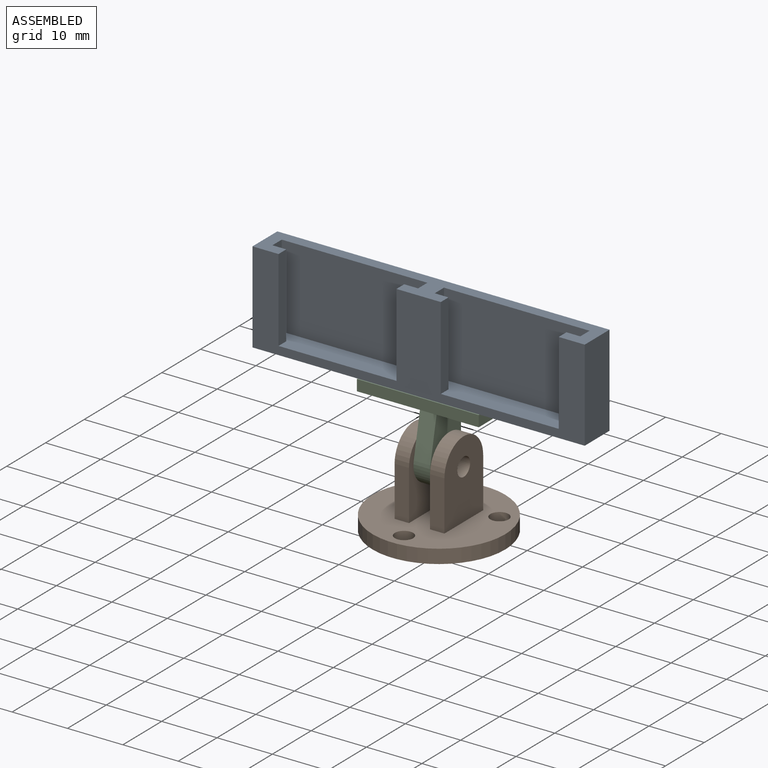
[diagram: assembled view]
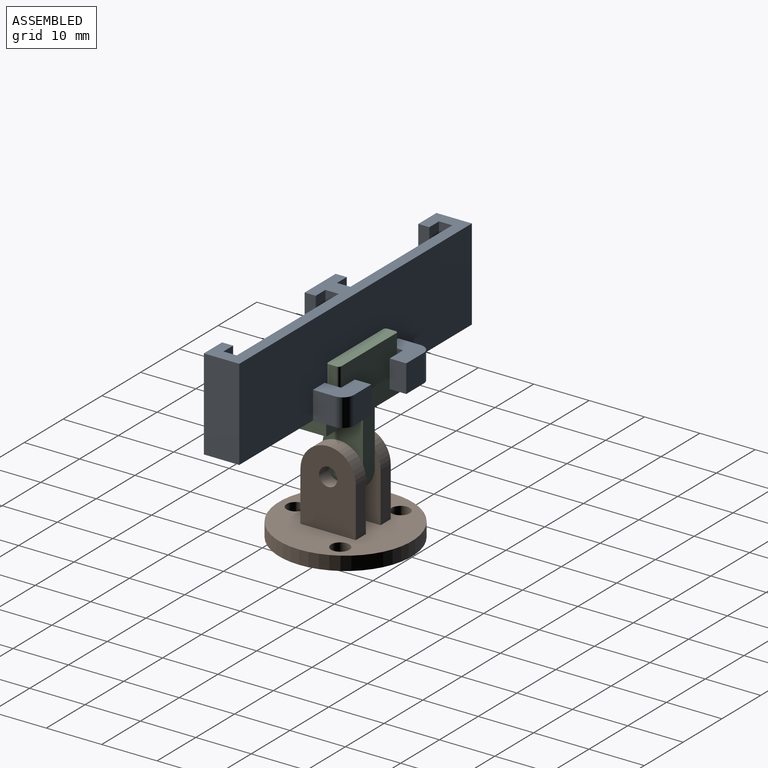
[diagram: assembled view, second angle]
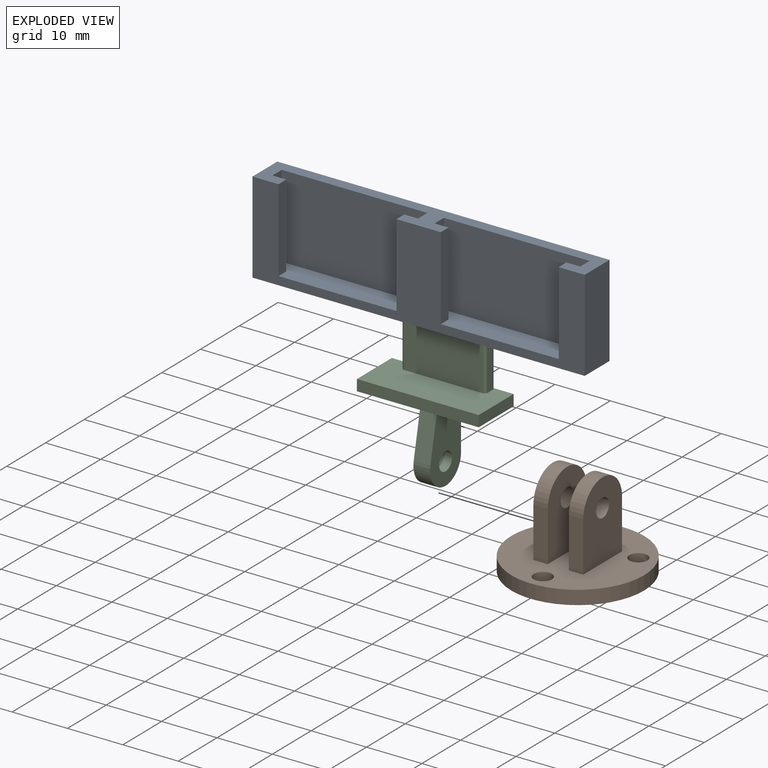
[diagram: exploded view]
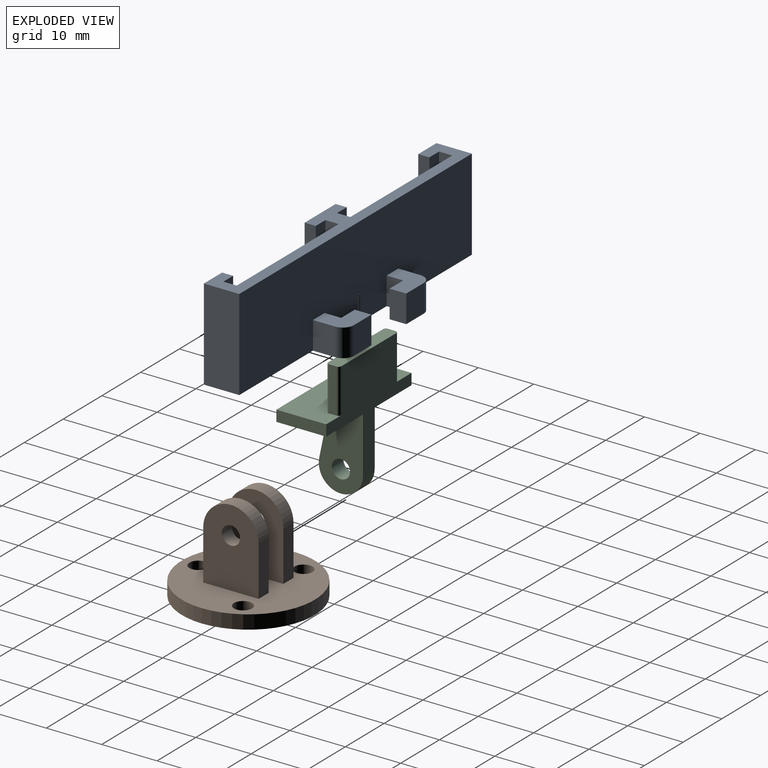
[diagram: exploded view, second angle]
ASSEMBLY  parts=3 mates=2
PART A: 36 faces, bbox 60x12.4x16.5 mm
  f0: plane 60x16.5mm, normal (0,1,0), area 960mm2, adj f3,f4,f5,f20,f22,f27,f28,f30
  f1: plane 26.3x15mm, normal (0,-1,0), area 394.5mm2, adj f3,f15,f16,f19
  f2: plane 26.3x15mm, normal (0,-1,0), area 394.5mm2, adj f3,f6,f10,f21
  f3: plane 60x6.4mm, normal (0,0,1), area 172.6mm2, adj f0,f1,f2,f4,f5,f6,f7,f8
  f4: plane 16.5x6.4mm, normal (-1,0,0), area 105.6mm2, adj f0,f3,f7,f20
  f5: plane 16.5x6.4mm, normal (1,0,0), area 105.6mm2, adj f0,f3,f7,f20
  f6: plane 15x2.4mm, normal (1,0,0), area 36mm2, adj f2,f3,f9,f21
  f7: plane 60x16.5mm, normal (0,-1,0), area 351mm2, adj f3,f4,f5,f8,f12,f13,f18,f19
  f8: plane 15x2mm, normal (1,0,0), area 30mm2, adj f3,f7,f9,f21
  f9: plane 15x2.5mm, normal (0,1,0), area 37.5mm2, adj f3,f6,f8,f21
  f10: plane 15x2.4mm, normal (-1,0,0), area 36mm2, adj f2,f3,f11,f21
  f11: plane 15x2.5mm, normal (0,1,0), area 37.5mm2, adj f3,f10,f12,f21
  f12: plane 15x2mm, normal (-1,0,0), area 30mm2, adj f3,f7,f11,f21
  f13: plane 15x2mm, normal (1,0,0), area 30mm2, adj f3,f7,f14,f19
  f14: plane 15x2.5mm, normal (0,1,0), area 37.5mm2, adj f3,f13,f15,f19
  f15: plane 15x2.4mm, normal (1,0,0), area 36mm2, adj f1,f3,f14,f19
  f16: plane 15x2.4mm, normal (-1,0,0), area 36mm2, adj f1,f3,f17,f19
  f17: plane 15x2.5mm, normal (0,1,0), area 37.5mm2, adj f3,f16,f18,f19
  f18: plane 15x2mm, normal (-1,0,0), area 30mm2, adj f3,f7,f17,f19
  f19: plane 26.3x4.4mm, normal (0,0,1), area 105.7mm2, adj f1,f7,f13,f14,f15,f16,f17,f18
  f20: plane 60x12.4mm, normal (0,0,-1), area 439.3mm2, adj f0,f4,f5,f7,f22,f23,f24,f25
  f21: plane 26.3x4.4mm, normal (0,0,1), area 105.7mm2, adj f2,f6,f7,f8,f9,f10,f11,f12
  f22: plane 5x3mm, normal (-1,0,0), area 15mm2, adj f0,f20,f23,f28
  f23: plane 5x3.5mm, normal (0,-1,0), area 17.5mm2, adj f20,f22,f24,f28
  f24: plane 5x3mm, normal (-1,0,0), area 15mm2, adj f20,f23,f25,f28
  f25: plane 5x4.5mm, normal (0,1,0), area 22.5mm2, adj f20,f24,f26,f28
  f26: cylinder r=2mm len=5mm, axis (0,0,-1), area 15.7mm2, adj f20,f25,f27,f28
  f27: plane 5x4mm, normal (1,0,0), area 20mm2, adj f0,f20,f26,f28
  f28: plane 6.5x6mm, normal (0,0,1), area 27.6mm2, adj f0,f22,f23,f24,f25,f26,f27
  f29: plane 5x3.5mm, normal (0,-1,0), area 17.5mm2, adj f20,f30,f34,f35
  f30: plane 5x3mm, normal (1,0,0), area 15mm2, adj f0,f20,f29,f35
  f31: plane 5x4mm, normal (-1,0,0), area 20mm2, adj f0,f20,f32,f35
  f32: cylinder r=2mm len=5mm, axis (0,0,-1), area 15.7mm2, adj f20,f31,f33,f35
  f33: plane 5x4.5mm, normal (0,1,0), area 22.5mm2, adj f20,f32,f34,f35
  f34: plane 5x3mm, normal (1,0,0), area 15mm2, adj f20,f29,f33,f35
  f35: plane 6.5x6mm, normal (0,0,1), area 27.6mm2, adj f0,f29,f30,f31,f32,f33,f34
PART B: 18 faces, bbox 24x24x16.5 mm
  f0: plane 9x2.6mm, normal (0,-1,0), area 23.4mm2, adj f3,f4,f5,f17
  f1: plane 9x2.6mm, normal (0,1,0), area 23.4mm2, adj f3,f4,f5,f17
  f2: cylinder r=1.65mm len=3.3mm, axis (-1,0,0), area 27mm2, adj f4,f5
  f3: cylinder r=5mm len=10mm, axis (-1,0,0), area 40.8mm2, adj f0,f1,f4,f5
  f4: plane 14x10mm, normal (-1,0,0), area 120.7mm2, adj f0,f1,f2,f3,f17
  f5: plane 14x10mm, normal (1,0,0), area 120.7mm2, adj f0,f1,f2,f3,f17
  f6: cylinder r=1.65mm len=3.3mm, axis (-1,0,0), area 27mm2, adj f7,f11
  f7: plane 14x10mm, normal (1,0,0), area 120.7mm2, adj f6,f8,f9,f10,f17
  f8: cylinder r=5mm len=10mm, axis (-1,0,0), area 40.8mm2, adj f7,f9,f10,f11
  f9: plane 9x2.6mm, normal (0,1,0), area 23.4mm2, adj f7,f8,f11,f17
  f10: plane 9x2.6mm, normal (0,-1,0), area 23.4mm2, adj f7,f8,f11,f17
  f11: plane 14x10mm, normal (-1,0,0), area 120.7mm2, adj f6,f8,f9,f10,f17
  f12: cylinder r=1.65mm len=3.3mm, axis (0,0,1), area 25.9mm2, adj f16,f17
  f13: cylinder r=1.65mm len=3.3mm, axis (0,0,1), area 25.9mm2, adj f16,f17
  f14: cylinder r=1.65mm len=3.3mm, axis (0,0,1), area 25.9mm2, adj f16,f17
  f15: cylinder r=12mm len=24mm, axis (0,0,1), area 188.5mm2, adj f16,f17
  f16: plane 24x24mm, normal (0,0,-1), area 426.7mm2, adj f12,f13,f14,f15
  f17: plane 24x24mm, normal (0,0,1), area 374.7mm2, adj f0,f1,f4,f5,f7,f9,f10,f11
PART C: 19 faces, bbox 22x9x24 mm
  f0: plane 22x9mm, normal (0,0,-1), area 180mm2, adj f7,f10,f11,f12,f14,f17,f18
  f1: plane 8x1.4mm, normal (1,0,0), area 11.2mm2, adj f2,f8,f9,f13
  f2: cylinder r=0.5mm len=8mm, axis (0,0,-1), area 6.3mm2, adj f1,f3,f9,f13
  f3: plane 14.2x8mm, normal (0,-1,0), area 113.6mm2, adj f2,f4,f9,f13
  f4: cylinder r=0.5mm len=8mm, axis (0,0,-1), area 6.3mm2, adj f3,f5,f9,f13
  f5: plane 8x1.4mm, normal (-1,0,0), area 11.2mm2, adj f4,f6,f9,f13
  f6: cylinder r=0.5mm len=8mm, axis (0,0,-1), area 6.3mm2, adj f5,f7,f9,f13
  f7: plane 22x20mm, normal (0,1,0), area 187.6mm2, adj f0,f6,f8,f9,f10,f11,f13,f15
  f8: cylinder r=0.5mm len=8mm, axis (0,0,-1), area 6.3mm2, adj f1,f7,f9,f13
  f9: plane 15.2x2.4mm, normal (0,0,1), area 36.3mm2, adj f1,f2,f3,f4,f5,f6,f7,f8
  f10: plane 9x2mm, normal (-1,0,0), area 18mm2, adj f0,f7,f12,f13
  f11: plane 9x2mm, normal (1,0,0), area 18mm2, adj f0,f7,f12,f13
  f12: plane 22x2mm, normal (0,-1,0), area 44mm2, adj f0,f10,f11,f13
  f13: plane 22x9mm, normal (0,0,1), area 161.7mm2, adj f1,f2,f3,f4,f5,f6,f7,f8
  f14: plane 9.18x3mm, normal (0,-0.98,0.2), area 28.1mm2, adj f0,f15,f17,f18
  f15: cylinder r=4mm len=8mm, axis (-1,0,0), area 40.2mm2, adj f7,f14,f17,f18
  f16: cylinder r=1.65mm len=3.3mm, axis (-1,0,0), area 31.1mm2, adj f17,f18
  f17: plane 14x8mm, normal (1,0,0), area 87mm2, adj f0,f7,f14,f15,f16
  f18: plane 14x8mm, normal (-1,0,0), area 87mm2, adj f0,f7,f14,f15,f16
PLACE A t=(-22.56,0.06,-3.17)mm
PLACE B rot(axis=(0,0,1),180deg) t=(-22.26,0.46,-25.67)mm
PLACE C t=(-22.56,-0.24,-3.17)mm
MATE revolute B.f2 <-> C.f15  axis (1,0,0) through (-24.16,0.46,-16.67)mm
MATE fastened C.f13 <-> A.f20  axis (0,0,1) through (-22.56,2.06,-4.67)mm
